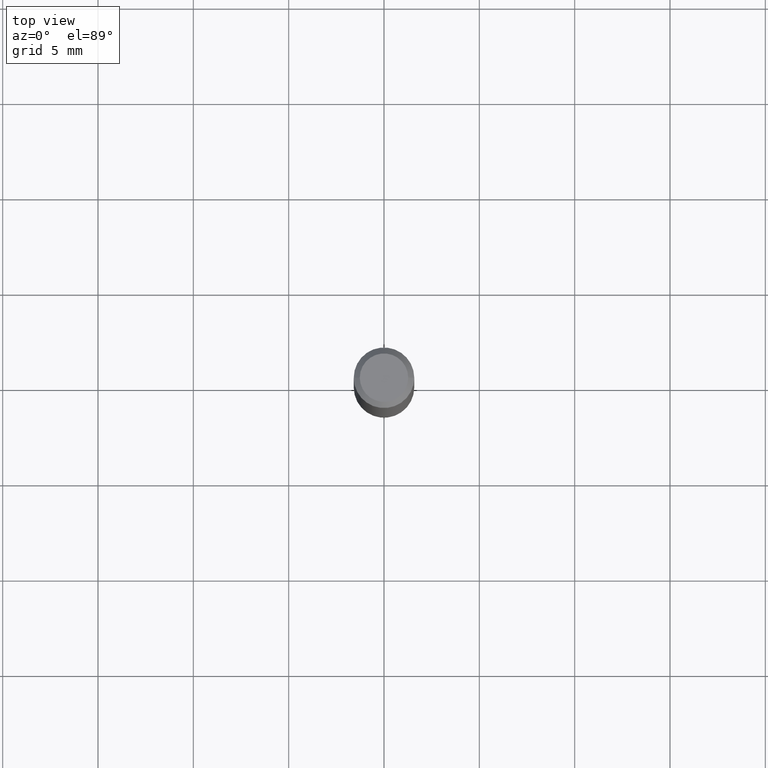
[diagram: clean part render]
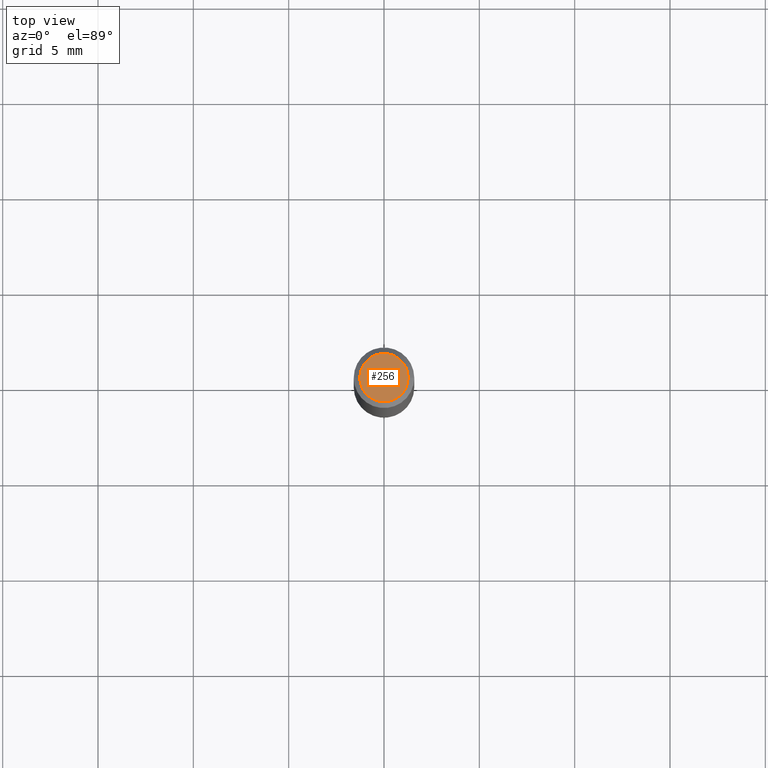
[diagram: same view with one face highlighted and labeled with its STEP entity id]
A machine part, top view. The second image highlights one B-rep face of the part: STEP entity #256.
In plain terms, the highlighted planar face has unit normal (0, -0, -1).
Its self-contained STEP definition (entity closure, byte-faithful):
#32 = FACE_OUTER_BOUND ( 'NONE', #133, .T. ) ;
#41 = ORIENTED_EDGE ( 'NONE', *, *, #428, .T. ) ;
#62 = DIRECTION ( 'NONE',  ( -1.000000000000000000, 6.982962677686265922E-15, -4.876176775795935793E-29 ) ) ;
#66 = PLANE ( 'NONE',  #196 ) ;
#114 = ORIENTED_EDGE ( 'NONE', *, *, #263, .T. ) ;
#133 = EDGE_LOOP ( 'NONE', ( #114, #41 ) ) ;
#151 = VERTEX_POINT ( 'NONE', #465 ) ;
#196 = AXIS2_PLACEMENT_3D ( 'NONE', #411, #475, #62 ) ;
#256 = ADVANCED_FACE ( 'NONE', ( #32 ), #66, .F. ) ;
#263 = EDGE_CURVE ( 'NONE', #359, #151, #272, .T. ) ;
#272 = CIRCLE ( 'NONE', #380, 0.04999999999999999584 ) ;
#276 = CARTESIAN_POINT ( 'NONE',  ( -0.04999999999999999584, 3.709698922520826725E-16, 3.380025165621512536E-19 ) ) ;
#296 = DIRECTION ( 'NONE',  ( -2.445468806185136597E-29, 3.491481338843145583E-15, 1.000000000000000000 ) ) ;
#310 = CIRCLE ( 'NONE', #460, 0.04999999999999999584 ) ;
#351 = DIRECTION ( 'NONE',  ( -2.445468806185136597E-29, 3.491481338843145583E-15, 1.000000000000000000 ) ) ;
#359 = VERTEX_POINT ( 'NONE', #276 ) ;
#380 = AXIS2_PLACEMENT_3D ( 'NONE', #472, #296, #483 ) ;
#411 = CARTESIAN_POINT ( 'NONE',  ( -4.132873053354867254E-48, 5.900647395337818946E-34, 1.690012582823346072E-19 ) ) ;
#421 = CARTESIAN_POINT ( 'NONE',  ( -8.265746106709734507E-48, 1.180129479067563789E-33, 3.380025165646692144E-19 ) ) ;
#428 = EDGE_CURVE ( 'NONE', #151, #359, #310, .T. ) ;
#455 = DIRECTION ( 'NONE',  ( 1.000000000000000000, -6.982962677686265922E-15, 4.876194921942043128E-29 ) ) ;
#460 = AXIS2_PLACEMENT_3D ( 'NONE', #421, #351, #455 ) ;
#465 = CARTESIAN_POINT ( 'NONE',  ( 0.04999999999999999584, -4.077247707424184705E-16, 3.380025165673154903E-19 ) ) ;
#472 = CARTESIAN_POINT ( 'NONE',  ( -8.265746106709734507E-48, 1.180129479067563789E-33, 3.380025165646692144E-19 ) ) ;
#475 = DIRECTION ( 'NONE',  ( 2.438088387897960049E-29, -3.491481338843145188E-15, -1.000000000000000000 ) ) ;
#483 = DIRECTION ( 'NONE',  ( 1.000000000000000000, -6.982962677686265922E-15, 4.876194921942043128E-29 ) ) ;